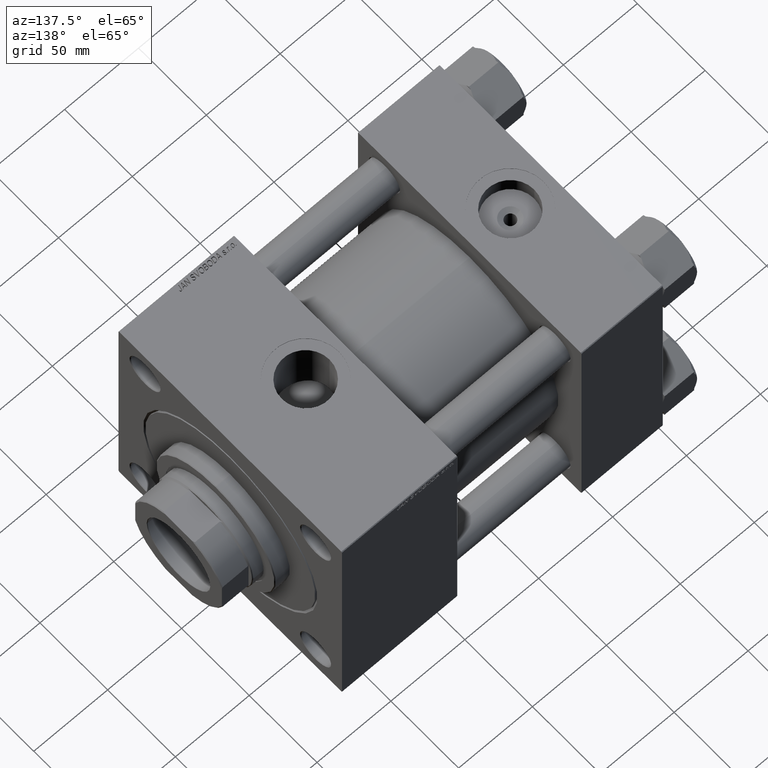
[diagram: clean part render]
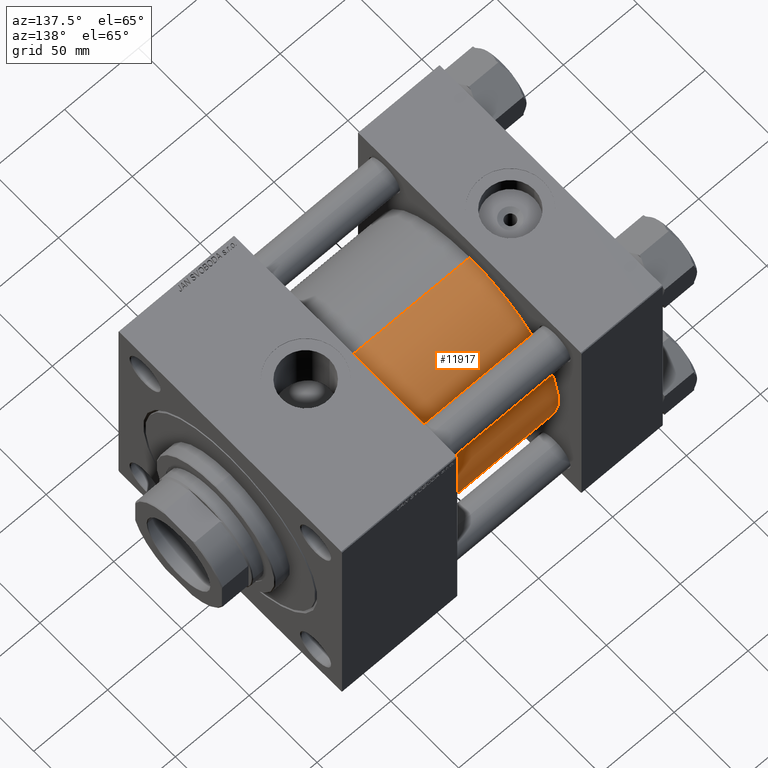
[diagram: same view with one face highlighted and labeled with its STEP entity id]
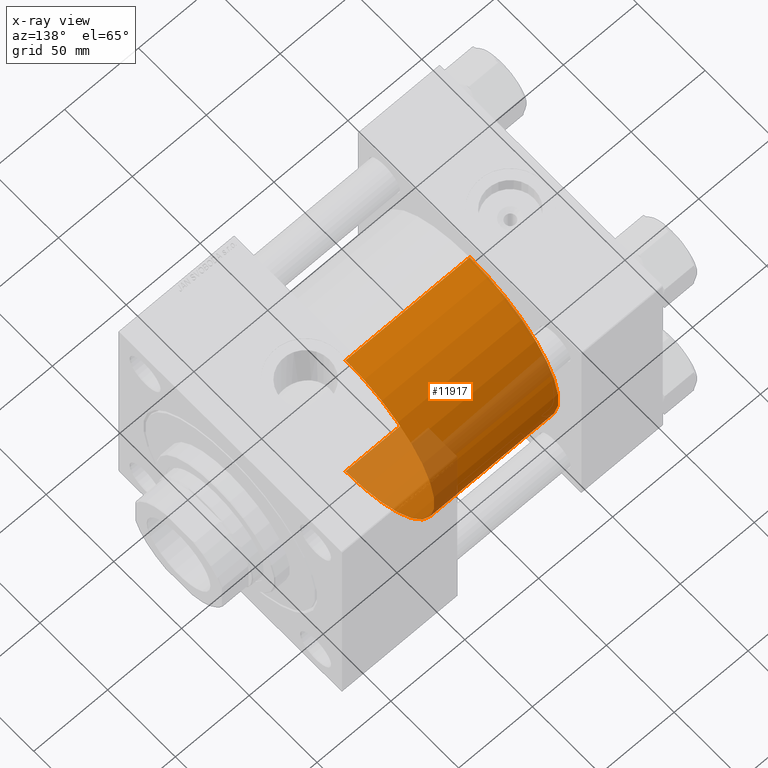
[diagram: x-ray of the same camera — body ghosted, the highlighted face saturated]
A machine part, auxiliary view. The second image highlights one B-rep face of the part: STEP entity #11917.
The next image is the same camera in x-ray: the body ghosted, the highlighted face saturated — about 28% of this face is hidden behind the body in this view.
In plain terms, the highlighted cylindrical surface (partial cylindrical patch) has radius 65.5 mm, axis along (-1, -0, -0).
Its self-contained STEP definition (entity closure, byte-faithful):
#1118 = ORIENTED_EDGE ( 'NONE', *, *, #6095, .T. ) ;
#1211 = ORIENTED_EDGE ( 'NONE', *, *, #22755, .F. ) ;
#2005 = CARTESIAN_POINT ( 'NONE',  ( 139.0000000000000000, 5.419351320449953395E-15, -65.50000000000001421 ) ) ;
#3079 = CARTESIAN_POINT ( 'NONE',  ( 139.0000000000000000, 5.419351320449953395E-15, -65.50000000000001421 ) ) ;
#6095 = EDGE_CURVE ( 'NONE', #22380, #29876, #6655, .T. ) ;
#6655 = CIRCLE ( 'NONE', #13233, 65.50000000000001421 ) ;
#9355 = LINE ( 'NONE', #19203, #16967 ) ;
#10405 = DIRECTION ( 'NONE',  ( 0.000000000000000000, 0.000000000000000000, -1.000000000000000000 ) ) ;
#11669 = DIRECTION ( 'NONE',  ( 0.000000000000000000, 0.000000000000000000, 1.000000000000000000 ) ) ;
#11917 = ADVANCED_FACE ( 'NONE', ( #18622 ), #14765, .T. ) ;
#13233 = AXIS2_PLACEMENT_3D ( 'NONE', #41270, #38161, #18173 ) ;
#14765 = CYLINDRICAL_SURFACE ( 'NONE', #23166, 65.50000000000001421 ) ;
#15016 = CARTESIAN_POINT ( 'NONE',  ( 139.0000000000000000, -2.602085213965210642E-15, 0.000000000000000000 ) ) ;
#16967 = VECTOR ( 'NONE', #50480, 1000.000000000000000 ) ;
#18173 = DIRECTION ( 'NONE',  ( 0.000000000000000000, 0.000000000000000000, 1.000000000000000000 ) ) ;
#18622 = FACE_OUTER_BOUND ( 'NONE', #19122, .T. ) ;
#19122 = EDGE_LOOP ( 'NONE', ( #24675, #50177, #1118, #1211 ) ) ;
#19203 = CARTESIAN_POINT ( 'NONE',  ( 139.0000000000000000, -2.602085213965210642E-15, 65.50000000000001421 ) ) ;
#20534 = DIRECTION ( 'NONE',  ( -1.000000000000000000, -0.000000000000000000, -0.000000000000000000 ) ) ;
#21070 = AXIS2_PLACEMENT_3D ( 'NONE', #45544, #37093, #10405 ) ;
#22380 = VERTEX_POINT ( 'NONE', #45939 ) ;
#22755 = EDGE_CURVE ( 'NONE', #43708, #29876, #9355, .T. ) ;
#23166 = AXIS2_PLACEMENT_3D ( 'NONE', #15016, #26569, #11669 ) ;
#23837 = EDGE_CURVE ( 'NONE', #43625, #43708, #43212, .T. ) ;
#24675 = ORIENTED_EDGE ( 'NONE', *, *, #23837, .F. ) ;
#25293 = VECTOR ( 'NONE', #20534, 1000.000000000000000 ) ;
#26569 = DIRECTION ( 'NONE',  ( -1.000000000000000000, -0.000000000000000000, -0.000000000000000000 ) ) ;
#29876 = VERTEX_POINT ( 'NONE', #35694 ) ;
#32074 = CARTESIAN_POINT ( 'NONE',  ( 139.0000000000000000, -2.602085213965210642E-15, 65.50000000000001421 ) ) ;
#35694 = CARTESIAN_POINT ( 'NONE',  ( 54.99999999999999289, -2.602085213965210642E-15, 65.50000000000001421 ) ) ;
#37093 = DIRECTION ( 'NONE',  ( 1.000000000000000000, 0.000000000000000000, 0.000000000000000000 ) ) ;
#37162 = LINE ( 'NONE', #2005, #25293 ) ;
#38161 = DIRECTION ( 'NONE',  ( 1.000000000000000000, -0.000000000000000000, -0.000000000000000000 ) ) ;
#41270 = CARTESIAN_POINT ( 'NONE',  ( 54.99999999999999289, -2.602085213965210642E-15, 0.000000000000000000 ) ) ;
#43212 = CIRCLE ( 'NONE', #21070, 65.50000000000001421 ) ;
#43625 = VERTEX_POINT ( 'NONE', #3079 ) ;
#43708 = VERTEX_POINT ( 'NONE', #32074 ) ;
#43837 = EDGE_CURVE ( 'NONE', #43625, #22380, #37162, .T. ) ;
#45544 = CARTESIAN_POINT ( 'NONE',  ( 139.0000000000000000, -2.602085213965210642E-15, 0.000000000000000000 ) ) ;
#45939 = CARTESIAN_POINT ( 'NONE',  ( 54.99999999999999289, 5.419351320449953395E-15, -65.50000000000001421 ) ) ;
#50177 = ORIENTED_EDGE ( 'NONE', *, *, #43837, .T. ) ;
#50480 = DIRECTION ( 'NONE',  ( -1.000000000000000000, -0.000000000000000000, -0.000000000000000000 ) ) ;